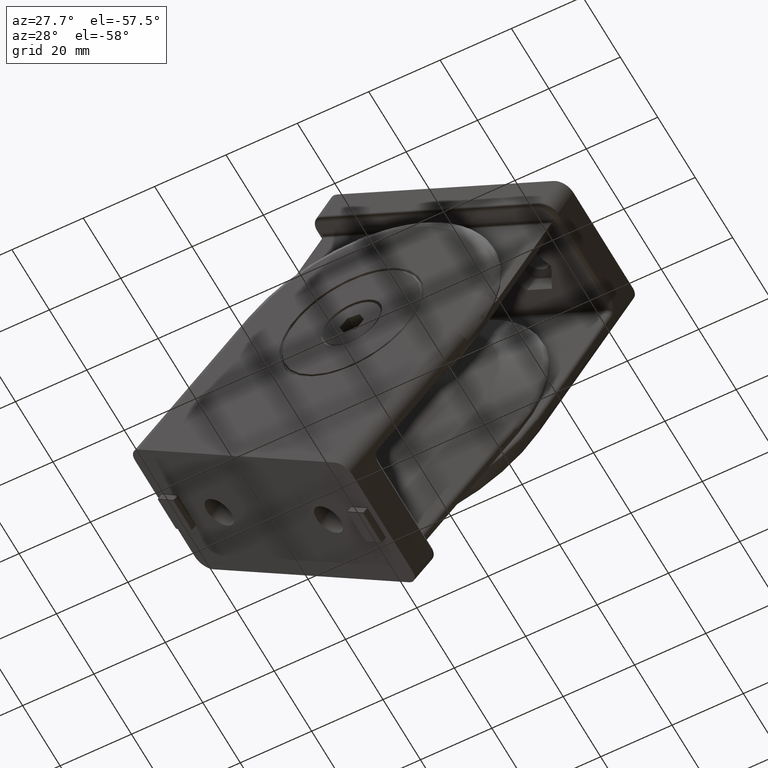
[diagram: clean part render]
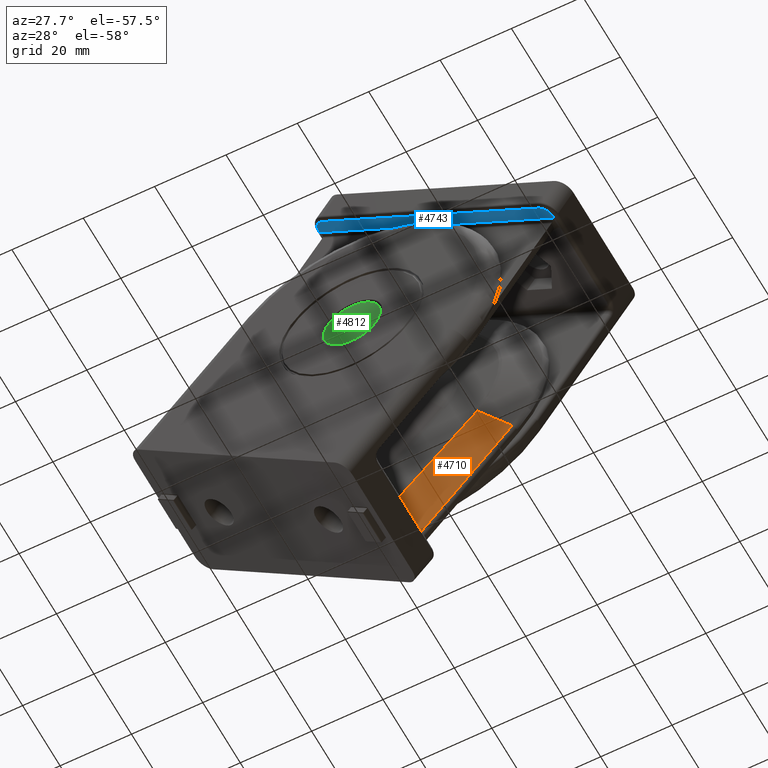
[diagram: same view with three faces highlighted in distinct colors, each labeled with its STEP entity id]
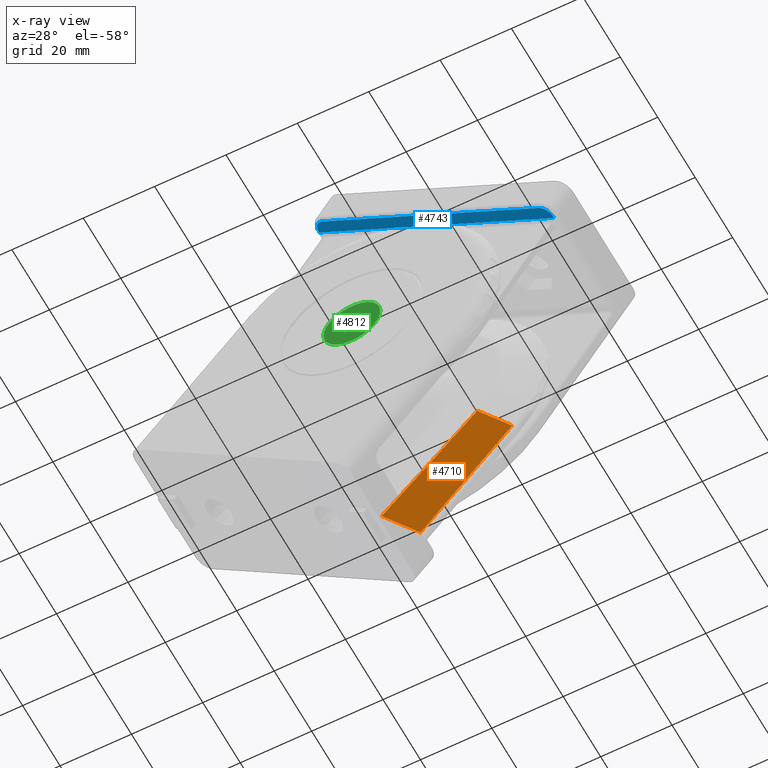
[diagram: x-ray of the same camera — body ghosted, the three highlighted faces saturated]
A machine part, auxiliary view with three faces highlighted in distinct colors.
The next image is the same camera in x-ray (body ghosted, the three faces saturated) — at least one of them is partly hidden behind the body in this view.
Their STEP definitions:

[orange] entity #4710 — the highlighted planar face has unit normal (-0.3101, 0.9144, 0.2602).
#177=PLANE('',#5189);
#354=LINE('',#8201,#659);
#395=LINE('',#8453,#700);
#396=LINE('',#8455,#701);
#397=LINE('',#8456,#702);
#659=VECTOR('',#6065,11.9115126554604);
#700=VECTOR('',#6198,40.);
#701=VECTOR('',#6199,10.6914244923029);
#702=VECTOR('',#6200,40.0186033630095);
#1240=FACE_OUTER_BOUND('',#1602,.T.);
#1602=EDGE_LOOP('',(#3711,#3712,#3713,#3714));
#2300=VERTEX_POINT('',#8189);
#2301=VERTEX_POINT('',#8200);
#2338=VERTEX_POINT('',#8452);
#2339=VERTEX_POINT('',#8454);
#2770=EDGE_CURVE('',#2301,#2300,#354,.T.);
#2836=EDGE_CURVE('',#2338,#2300,#395,.T.);
#2837=EDGE_CURVE('',#2339,#2338,#396,.T.);
#2838=EDGE_CURVE('',#2301,#2339,#397,.T.);
#3711=ORIENTED_EDGE('',*,*,#2836,.F.);
#3712=ORIENTED_EDGE('',*,*,#2837,.F.);
#3713=ORIENTED_EDGE('',*,*,#2838,.F.);
#3714=ORIENTED_EDGE('',*,*,#2770,.T.);
#4710=ADVANCED_FACE('',(#1240),#177,.F.);
#5189=AXIS2_PLACEMENT_3D('',#8451,#6196,#6197);
#6065=DIRECTION('',(0.914428660574951,-0.404747112057765,0.));
#6196=DIRECTION('center_axis',(-0.404747112057765,-0.914428660574951,-5.47999467020816E-16));
#6197=DIRECTION('ref_axis',(0.914428660574951,-0.404747112057765,0.));
#6198=DIRECTION('',(-2.2180120168587E-16,-5.01106418623632E-16,1.));
#6199=DIRECTION('',(0.914428660574951,-0.404747112057765,0.));
#6200=DIRECTION('',(0.0278791234841219,-0.0123399399028074,-0.999535132127407));
#8189=CARTESIAN_POINT('',(36.9071206680866,-12.2047911153826,-1.));
#8200=CARTESIAN_POINT('',(26.0148921051324,-7.38364076784552,-1.));
#8201=CARTESIAN_POINT('',(-28.0046067415731,16.5266292134831,-1.));
#8451=CARTESIAN_POINT('Origin',(25.6,-7.2,-1.9225813353265E-14));
#8452=CARTESIAN_POINT('',(36.9071206680867,-12.2047911153826,-41.));
#8453=CARTESIAN_POINT('',(36.9071206680866,-12.2047911153826,-1.9225813353265E-14));
#8454=CARTESIAN_POINT('',(27.1305756899519,-7.87746792833935,-41.));
#8455=CARTESIAN_POINT('',(25.6,-7.19999999999998,-41.));
#8456=CARTESIAN_POINT('',(26.0148921051324,-7.38364076784552,-1.));

[blue] entity #4743 — the highlighted planar face has unit normal (0.5311, -0, 0.8473).
#194=PLANE('',#5246);
#351=LINE('',#8181,#656);
#352=LINE('',#8186,#657);
#418=LINE('',#8729,#723);
#427=LINE('',#9102,#732);
#656=VECTOR('',#6056,0.500000000000012);
#657=VECTOR('',#6061,0.499999999999976);
#723=VECTOR('',#6289,77.6);
#732=VECTOR('',#6342,71.6);
#1273=FACE_OUTER_BOUND('',#1638,.T.);
#1638=EDGE_LOOP('',(#3857,#3858,#3859,#3860,#3861,#3862));
#1965=CIRCLE('',#5213,3.);
#1967=CIRCLE('',#5216,3.00000000000002);
#2296=VERTEX_POINT('',#8177);
#2297=VERTEX_POINT('',#8179);
#2298=VERTEX_POINT('',#8183);
#2299=VERTEX_POINT('',#8185);
#2354=VERTEX_POINT('',#8547);
#2355=VERTEX_POINT('',#8551);
#2765=EDGE_CURVE('',#2297,#2296,#351,.T.);
#2767=EDGE_CURVE('',#2298,#2299,#352,.T.);
#2868=EDGE_CURVE('',#2296,#2354,#1965,.T.);
#2870=EDGE_CURVE('',#2355,#2298,#1967,.T.);
#2878=EDGE_CURVE('',#2297,#2299,#418,.T.);
#2901=EDGE_CURVE('',#2354,#2355,#427,.T.);
#3857=ORIENTED_EDGE('',*,*,#2878,.T.);
#3858=ORIENTED_EDGE('',*,*,#2767,.F.);
#3859=ORIENTED_EDGE('',*,*,#2870,.F.);
#3860=ORIENTED_EDGE('',*,*,#2901,.F.);
#3861=ORIENTED_EDGE('',*,*,#2868,.F.);
#3862=ORIENTED_EDGE('',*,*,#2765,.F.);
#4743=ADVANCED_FACE('',(#1273),#194,.F.);
#5213=AXIS2_PLACEMENT_3D('',#8549,#6265,#6266);
#5216=AXIS2_PLACEMENT_3D('',#8553,#6271,#6272);
#5246=AXIS2_PLACEMENT_3D('',#9103,#6343,#6344);
#6056=DIRECTION('',(0.,-1.,0.));
#6061=DIRECTION('',(0.,1.,0.));
#6265=DIRECTION('center_axis',(-6.16949626942396E-17,-6.16949626942397E-17,
1.));
#6266=DIRECTION('ref_axis',(1.48029736616687E-15,-1.,-6.16949626942397E-17));
#6271=DIRECTION('center_axis',(0.,0.,1.));
#6272=DIRECTION('ref_axis',(1.,-5.92118946466747E-15,0.));
#6289=DIRECTION('',(1.,0.,0.));
#6342=DIRECTION('',(1.,0.,0.));
#6343=DIRECTION('center_axis',(0.,0.,1.));
#6344=DIRECTION('ref_axis',(1.,0.,0.));
#8177=CARTESIAN_POINT('',(-38.8,-15.9,-1.0842021724855E-16));
#8179=CARTESIAN_POINT('',(-38.8,-15.4,0.));
#8181=CARTESIAN_POINT('',(-38.8,-23.,0.));
#8183=CARTESIAN_POINT('',(38.8,-15.9,0.));
#8185=CARTESIAN_POINT('',(38.8,-15.4,0.));
#8186=CARTESIAN_POINT('',(38.8,-23.,0.));
#8547=CARTESIAN_POINT('',(-35.8,-18.9,-1.0842021724855E-16));
#8549=CARTESIAN_POINT('Origin',(-35.8,-15.9,7.66646708341688E-17));
#8551=CARTESIAN_POINT('',(35.8,-18.9,0.));
#8553=CARTESIAN_POINT('Origin',(35.8,-15.9,0.));
#8729=CARTESIAN_POINT('',(39.8,-15.4,0.));
#9102=CARTESIAN_POINT('',(-45.5,-18.9,0.));
#9103=CARTESIAN_POINT('Origin',(-45.5,-23.,0.));

[green] entity #4812 — the highlighted planar face has unit normal (0, 1, -0).
#226=PLANE('',#5364);
#477=LINE('',#10137,#782);
#478=LINE('',#10139,#783);
#479=LINE('',#10141,#784);
#480=LINE('',#10143,#785);
#481=LINE('',#10145,#786);
#482=LINE('',#10146,#787);
#782=VECTOR('',#6630,3.46410161513774);
#783=VECTOR('',#6631,3.46410161513777);
#784=VECTOR('',#6632,3.46410161513775);
#785=VECTOR('',#6633,3.46410161513775);
#786=VECTOR('',#6634,3.46410161513775);
#787=VECTOR('',#6635,3.46410161513776);
#1117=FACE_BOUND('',#1721,.T.);
#1342=FACE_OUTER_BOUND('',#1720,.T.);
#1720=EDGE_LOOP('',(#4180));
#1721=EDGE_LOOP('',(#4181,#4182,#4183,#4184,#4185,#4186));
#2026=CIRCLE('',#5356,8.);
#2418=VERTEX_POINT('',#10121);
#2423=VERTEX_POINT('',#10135);
#2424=VERTEX_POINT('',#10136);
#2425=VERTEX_POINT('',#10138);
#2426=VERTEX_POINT('',#10140);
#2427=VERTEX_POINT('',#10142);
#2428=VERTEX_POINT('',#10144);
#3009=EDGE_CURVE('',#2418,#2418,#2026,.T.);
#3014=EDGE_CURVE('',#2423,#2424,#477,.T.);
#3015=EDGE_CURVE('',#2425,#2423,#478,.T.);
#3016=EDGE_CURVE('',#2426,#2425,#479,.T.);
#3017=EDGE_CURVE('',#2427,#2426,#480,.T.);
#3018=EDGE_CURVE('',#2428,#2427,#481,.T.);
#3019=EDGE_CURVE('',#2424,#2428,#482,.T.);
#4180=ORIENTED_EDGE('',*,*,#3009,.F.);
#4181=ORIENTED_EDGE('',*,*,#3014,.F.);
#4182=ORIENTED_EDGE('',*,*,#3015,.F.);
#4183=ORIENTED_EDGE('',*,*,#3016,.F.);
#4184=ORIENTED_EDGE('',*,*,#3017,.F.);
#4185=ORIENTED_EDGE('',*,*,#3018,.F.);
#4186=ORIENTED_EDGE('',*,*,#3019,.F.);
#4812=ADVANCED_FACE('',(#1342,#1117),#226,.F.);
#5356=AXIS2_PLACEMENT_3D('',#10122,#6612,#6613);
#5364=AXIS2_PLACEMENT_3D('',#10134,#6628,#6629);
#6612=DIRECTION('center_axis',(-1.23259516440783E-31,-1.,5.54667823983524E-32));
#6613=DIRECTION('ref_axis',(1.,-1.23259516440783E-31,0.));
#6628=DIRECTION('center_axis',(-1.23259516440783E-31,-1.,0.));
#6629=DIRECTION('ref_axis',(1.,-1.23259516440783E-31,0.));
#6630=DIRECTION('',(0.866025403784437,-1.06745872495904E-31,-0.500000000000003));
#6631=DIRECTION('',(0.866025403784436,-1.06745872495904E-31,0.500000000000004));
#6632=DIRECTION('',(0.,0.,1.));
#6633=DIRECTION('',(-0.866025403784438,1.06745872495904E-31,0.500000000000001));
#6634=DIRECTION('',(-0.866025403784436,1.06745872495903E-31,-0.500000000000005));
#6635=DIRECTION('',(0.,0.,-1.));
#10121=CARTESIAN_POINT('',(8.,-9.86076131526265E-31,-3.3490703940283E-78));
#10122=CARTESIAN_POINT('Origin',(7.44237865339621E-78,6.03797489094622E-47,
-3.3490703940283E-78));
#10134=CARTESIAN_POINT('Origin',(-8.00000000000002,0.,0.));
#10135=CARTESIAN_POINT('',(4.55364912443912E-15,-2.46519032881567E-31,3.46410161513776));
#10136=CARTESIAN_POINT('',(2.99999999999999,-3.38963670212154E-31,1.73205080756889));
#10137=CARTESIAN_POINT('',(0.,-9.86076131526267E-31,3.46410161513777));
#10138=CARTESIAN_POINT('',(-3.,-1.54074395550979E-31,1.73205080756887));
#10139=CARTESIAN_POINT('',(-3.,-6.16297582203918E-31,1.73205080756887));
#10140=CARTESIAN_POINT('',(-3.,4.33680868994202E-16,-1.73205080756887));
#10141=CARTESIAN_POINT('',(-3.,-6.16297582203918E-31,0.));
#10142=CARTESIAN_POINT('',(-5.09575021068187E-15,2.16840434497101E-16,-3.46410161513775));
#10143=CARTESIAN_POINT('',(0.,-9.86076131526267E-31,-3.46410161513776));
#10144=CARTESIAN_POINT('',(2.99999999999998,-3.38963670212154E-31,-1.73205080756887));
#10145=CARTESIAN_POINT('',(2.99999999999998,-1.35585468084861E-30,-1.73205080756887));
#10146=CARTESIAN_POINT('',(2.99999999999999,-1.35585468084862E-30,0.));